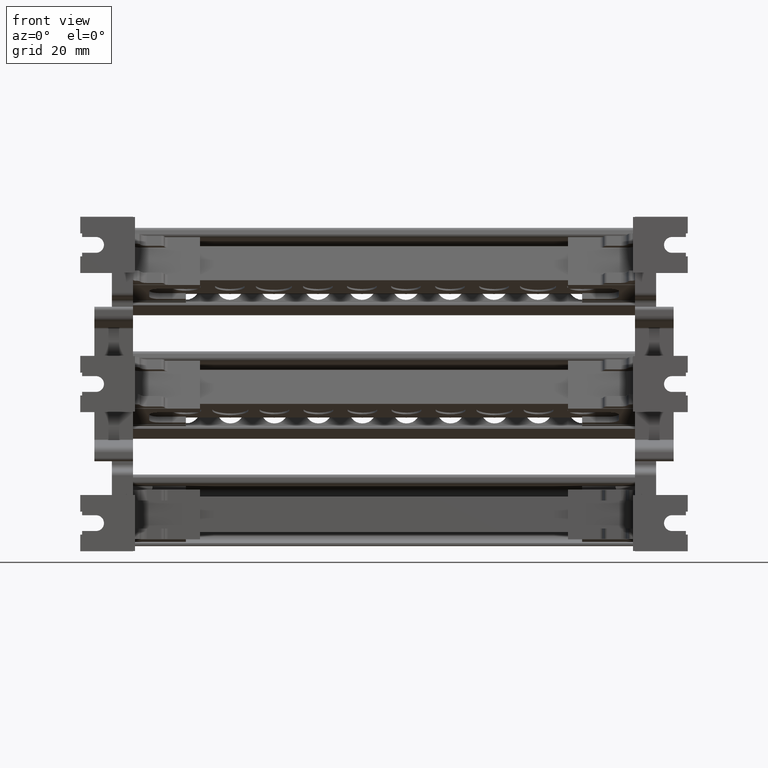
[diagram: clean part render]
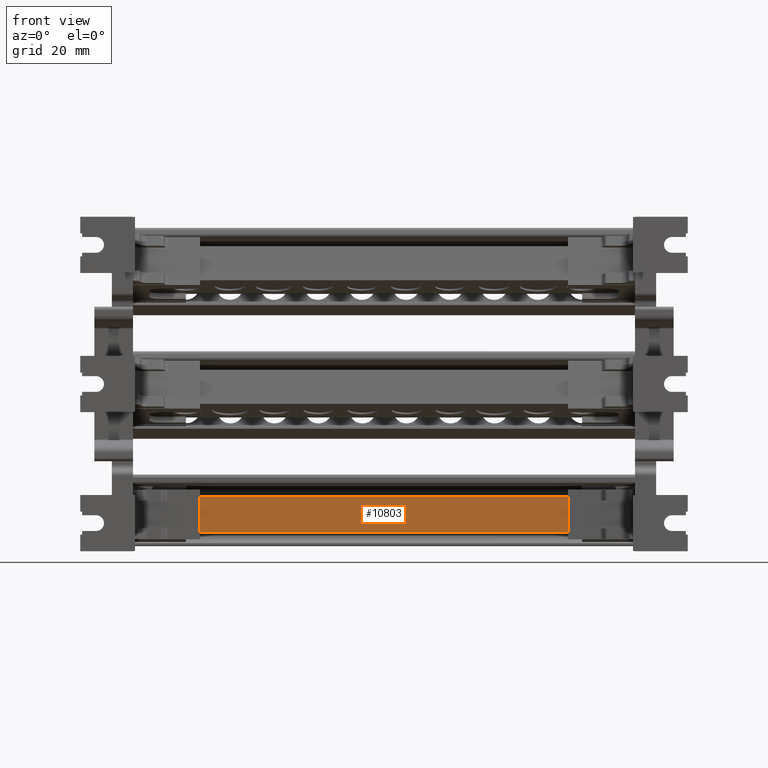
[diagram: same view with one face highlighted and labeled with its STEP entity id]
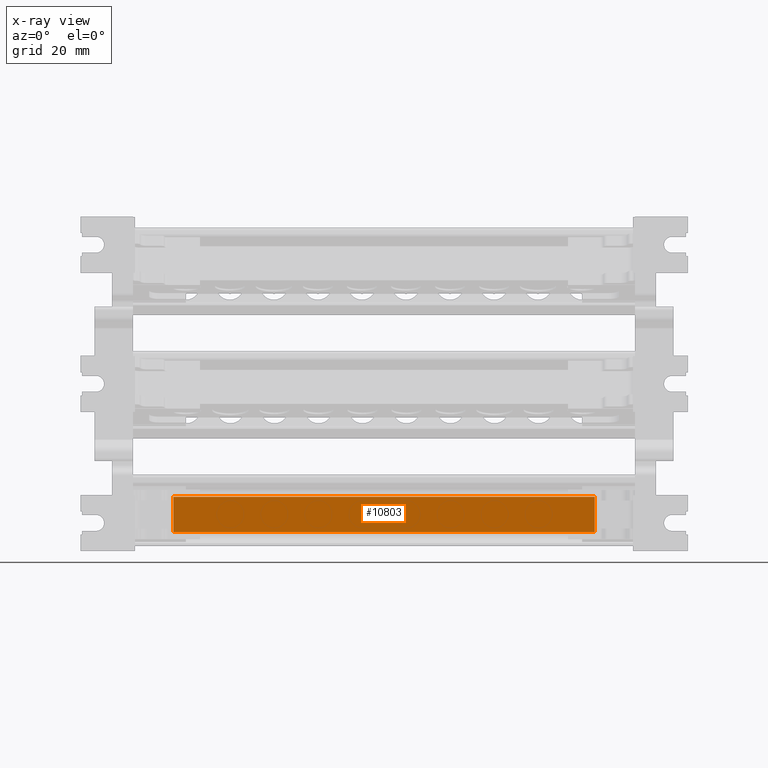
[diagram: x-ray of the same camera — body ghosted, the highlighted face saturated]
A machine part, front view. The second image highlights one B-rep face of the part: STEP entity #10803.
The next image is the same camera in x-ray: the body ghosted, the highlighted face saturated — about 0% of this face is hidden behind the body in this view.
In plain terms, the highlighted planar face has unit normal (-0, 1, -0).
Its self-contained STEP definition (entity closure, byte-faithful):
#2999 = ORIENTED_EDGE ( 'NONE', *, *, #59126, .T. ) ;
#3030 = ORIENTED_EDGE ( 'NONE', *, *, #39323, .F. ) ;
#3050 = ORIENTED_EDGE ( 'NONE', *, *, #59065, .F. ) ;
#3079 = ORIENTED_EDGE ( 'NONE', *, *, #59079, .F. ) ;
#10803 = ADVANCED_FACE ( 'NONE', ( #84045 ), #84059, .F. ) ;
#15122 = CARTESIAN_POINT ( 'NONE',  ( 32.77005696747560400, 261.7796993914182100, -38.86765911292021500 ) ) ;
#18244 = AXIS2_PLACEMENT_3D ( 'NONE', #84062, #84086, #84089 ) ;
#22460 = VECTOR ( 'NONE', #23312, 1000.000000000000000 ) ;
#23312 = DIRECTION ( 'NONE',  ( -0.0000000000000000000, -1.317279618717748500E-013, -1.000000000000000000 ) ) ;
#23314 = CARTESIAN_POINT ( 'NONE',  ( 32.77005696747560400, 261.7796993914195100, -28.86765911292127400 ) ) ;
#34522 = VECTOR ( 'NONE', #65482, 1000.000000000000000 ) ;
#34538 = VECTOR ( 'NONE', #65469, 1000.000000000000000 ) ;
#34669 = VECTOR ( 'NONE', #65584, 1000.000000000000000 ) ;
#37214 = VERTEX_POINT ( 'NONE', #15122 ) ;
#39323 = EDGE_CURVE ( 'NONE', #62990, #37214, #66329, .T. ) ;
#59065 = EDGE_CURVE ( 'NONE', #61840, #61812, #65453, .T. ) ;
#59079 = EDGE_CURVE ( 'NONE', #37214, #61840, #65413, .T. ) ;
#59126 = EDGE_CURVE ( 'NONE', #62990, #61812, #65544, .T. ) ;
#61812 = VERTEX_POINT ( 'NONE', #108464 ) ;
#61840 = VERTEX_POINT ( 'NONE', #108574 ) ;
#62990 = VERTEX_POINT ( 'NONE', #98696 ) ;
#65413 = LINE ( 'NONE', #65491, #34522 ) ;
#65422 = CARTESIAN_POINT ( 'NONE',  ( -86.87394303252671100, 261.7796993914188300, -28.86765911292127400 ) ) ;
#65453 = LINE ( 'NONE', #65422, #34538 ) ;
#65469 = DIRECTION ( 'NONE',  ( 0.0000000000000000000, 1.317279618717748500E-013, 1.000000000000000000 ) ) ;
#65482 = DIRECTION ( 'NONE',  ( -1.000000000000000000, -1.121687316080834000E-027, -8.515180073708985400E-015 ) ) ;
#65491 = CARTESIAN_POINT ( 'NONE',  ( -94.77394303252583500, 261.7796993914182100, -38.86765911292128800 ) ) ;
#65544 = LINE ( 'NONE', #65548, #34669 ) ;
#65548 = CARTESIAN_POINT ( 'NONE',  ( -94.77394303252586400, 261.7796993914188900, -28.86765911292127400 ) ) ;
#65584 = DIRECTION ( 'NONE',  ( -1.000000000000000000, -1.121687316080834000E-027, -8.515180073708985400E-015 ) ) ;
#66329 = LINE ( 'NONE', #23314, #22460 ) ;
#84045 = FACE_OUTER_BOUND ( 'NONE', #91991, .T. ) ;
#84059 = PLANE ( 'NONE',  #18244 ) ;
#84062 = CARTESIAN_POINT ( 'NONE',  ( -94.77394303252583500, 261.7796993914187700, -28.86765911292127400 ) ) ;
#84086 = DIRECTION ( 'NONE',  ( -6.208625656996189700E-015, 1.000000000000000000, -1.317279618717748500E-013 ) ) ;
#84089 = DIRECTION ( 'NONE',  ( 0.0000000000000000000, 1.317279618717748500E-013, 1.000000000000000000 ) ) ;
#91991 = EDGE_LOOP ( 'NONE', ( #3030, #2999, #3050, #3079 ) ) ;
#98696 = CARTESIAN_POINT ( 'NONE',  ( 32.77005696747561100, 261.7796993914187200, -28.86765911292037100 ) ) ;
#108464 = CARTESIAN_POINT ( 'NONE',  ( -86.87394303252673900, 261.7796993914188900, -28.86765911292108900 ) ) ;
#108574 = CARTESIAN_POINT ( 'NONE',  ( -86.87394303252671100, 261.7796993914190000, -38.86765911292120300 ) ) ;